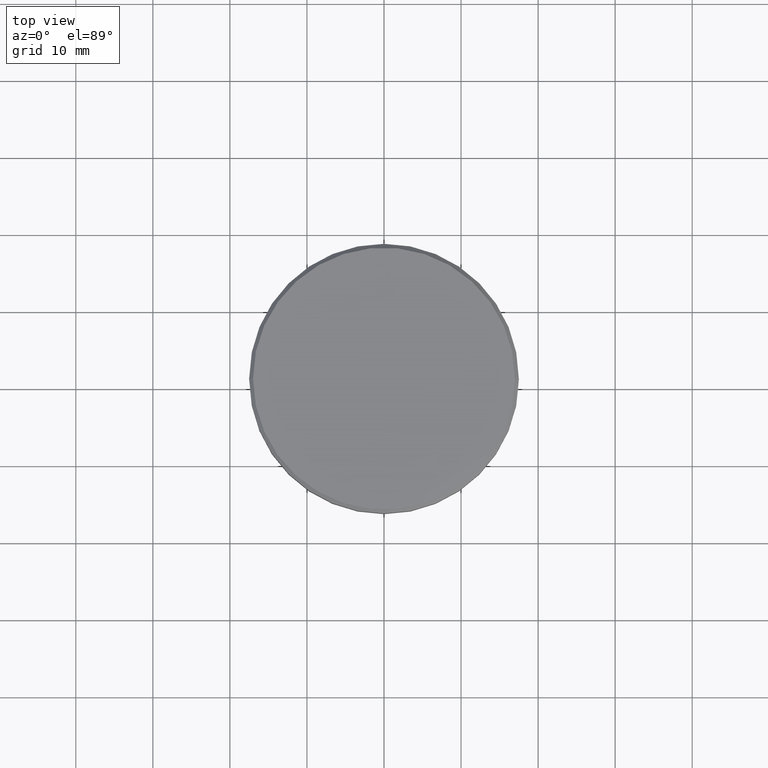
[diagram: clean part render]
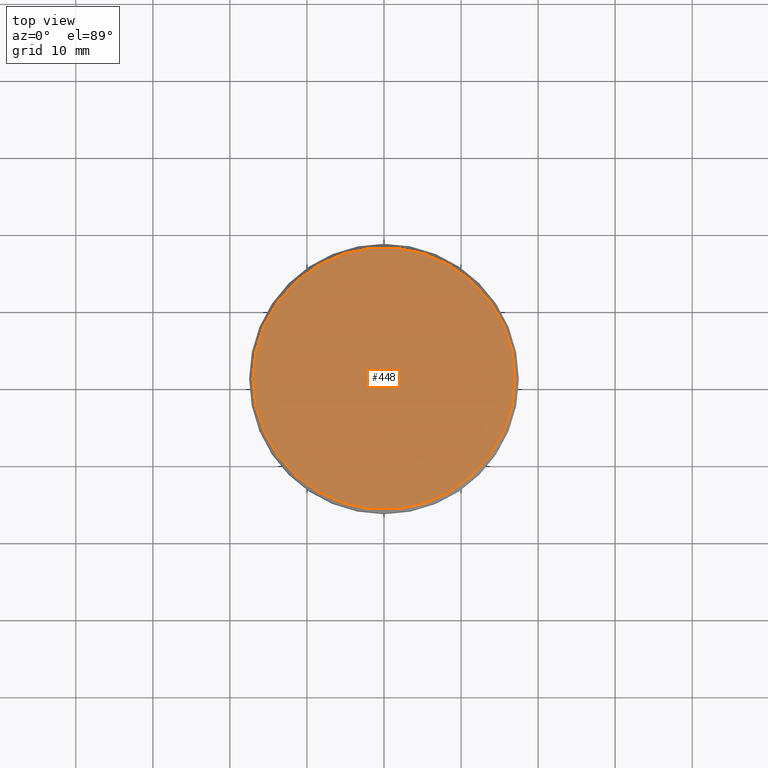
[diagram: same view with one face highlighted and labeled with its STEP entity id]
A machine part, top view. The second image highlights one B-rep face of the part: STEP entity #448.
In plain terms, the highlighted planar face has unit normal (0, -0, 1).
Its self-contained STEP definition (entity closure, byte-faithful):
#31 = DIRECTION ( 'NONE',  ( 1.000000000000000000, 0.000000000000000000, 0.000000000000000000 ) ) ;
#44 = AXIS2_PLACEMENT_3D ( 'NONE', #1121, #121, #31 ) ;
#108 = EDGE_CURVE ( 'NONE', #263, #1047, #1093, .T. ) ;
#121 = DIRECTION ( 'NONE',  ( -0.000000000000000000, -0.000000000000000000, 1.000000000000000000 ) ) ;
#211 = FACE_OUTER_BOUND ( 'NONE', #1090, .T. ) ;
#242 = DIRECTION ( 'NONE',  ( 1.000000000000000000, 0.000000000000000000, 0.000000000000000000 ) ) ;
#263 = VERTEX_POINT ( 'NONE', #970 ) ;
#448 = ADVANCED_FACE ( 'NONE', ( #211 ), #517, .T. ) ;
#517 = PLANE ( 'NONE',  #566 ) ;
#559 = ORIENTED_EDGE ( 'NONE', *, *, #108, .T. ) ;
#566 = AXIS2_PLACEMENT_3D ( 'NONE', #936, #1017, #242 ) ;
#713 = CARTESIAN_POINT ( 'NONE',  ( 0.000000000000000000, 0.000000000000000000, 0.000000000000000000 ) ) ;
#803 = AXIS2_PLACEMENT_3D ( 'NONE', #713, #993, #905 ) ;
#900 = CARTESIAN_POINT ( 'NONE',  ( 17.00000000000002842, 2.112515728529186039E-15, 0.000000000000000000 ) ) ;
#905 = DIRECTION ( 'NONE',  ( 1.000000000000000000, 0.000000000000000000, 0.000000000000000000 ) ) ;
#936 = CARTESIAN_POINT ( 'NONE',  ( 0.000000000000000000, 0.000000000000000000, 0.000000000000000000 ) ) ;
#970 = CARTESIAN_POINT ( 'NONE',  ( -17.00000000000002842, 0.000000000000000000, 0.000000000000000000 ) ) ;
#993 = DIRECTION ( 'NONE',  ( -0.000000000000000000, -0.000000000000000000, 1.000000000000000000 ) ) ;
#1017 = DIRECTION ( 'NONE',  ( 0.000000000000000000, -0.000000000000000000, 1.000000000000000000 ) ) ;
#1047 = VERTEX_POINT ( 'NONE', #900 ) ;
#1090 = EDGE_LOOP ( 'NONE', ( #559, #1141 ) ) ;
#1093 = CIRCLE ( 'NONE', #44, 17.00000000000002842 ) ;
#1110 = EDGE_CURVE ( 'NONE', #1047, #263, #1153, .T. ) ;
#1121 = CARTESIAN_POINT ( 'NONE',  ( 0.000000000000000000, 0.000000000000000000, 0.000000000000000000 ) ) ;
#1141 = ORIENTED_EDGE ( 'NONE', *, *, #1110, .T. ) ;
#1153 = CIRCLE ( 'NONE', #803, 17.00000000000002842 ) ;